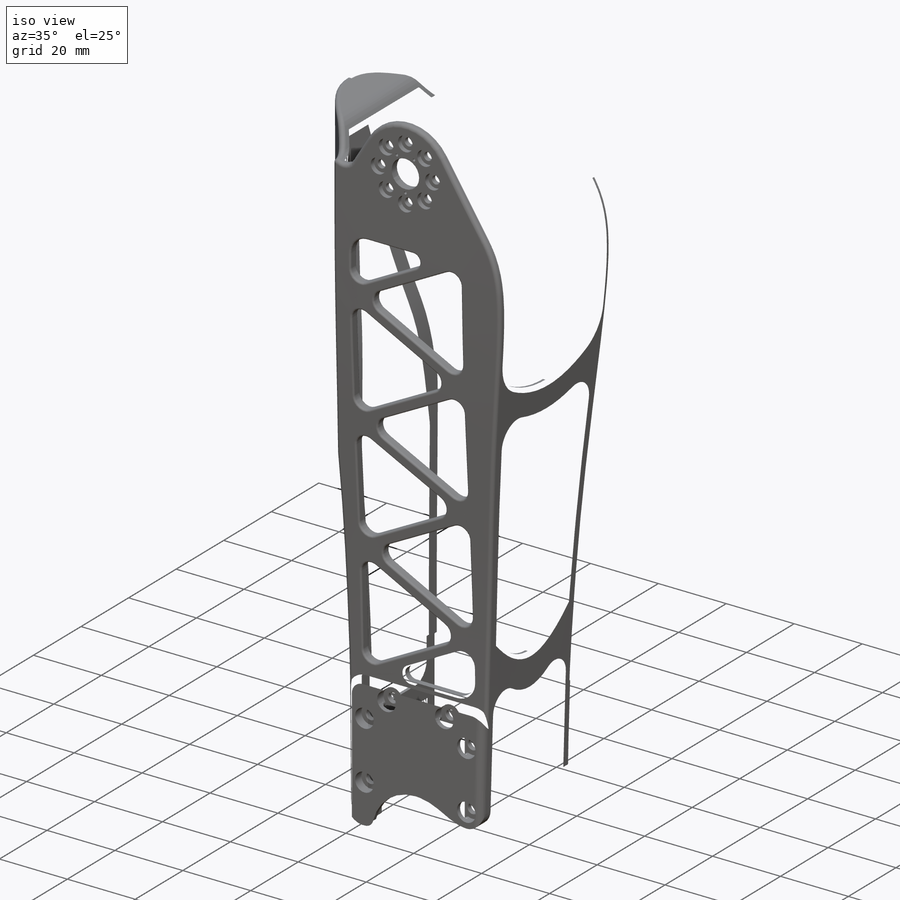
[diagram: iso view]
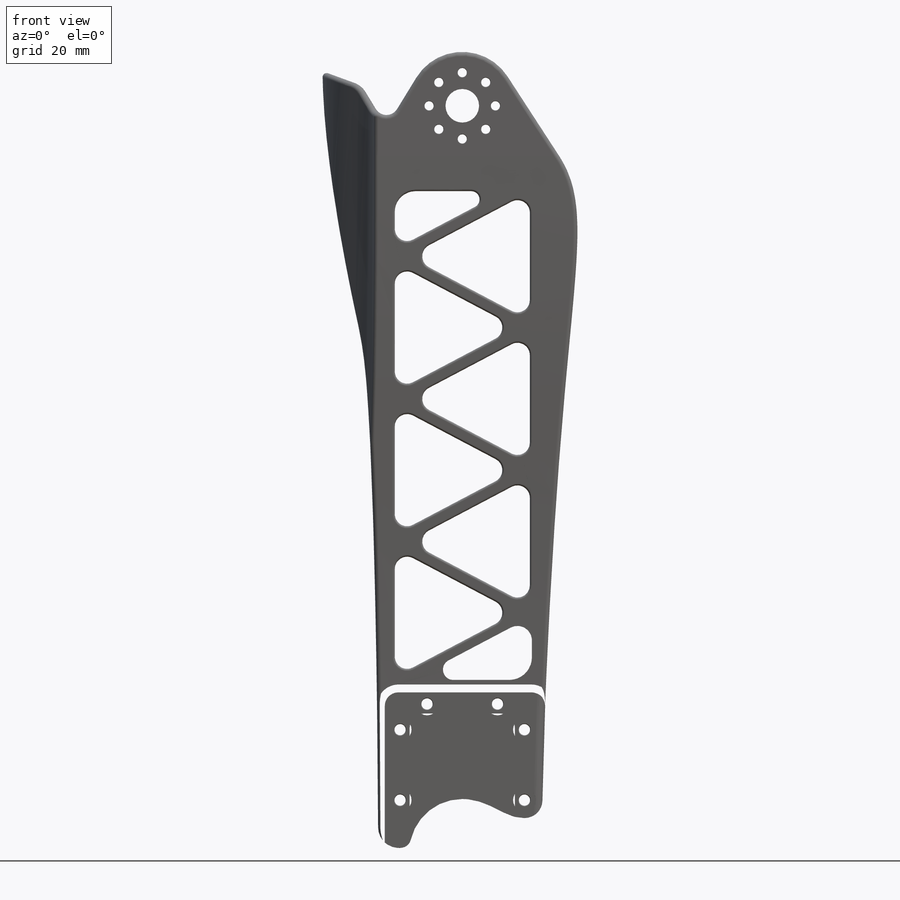
[diagram: front view]
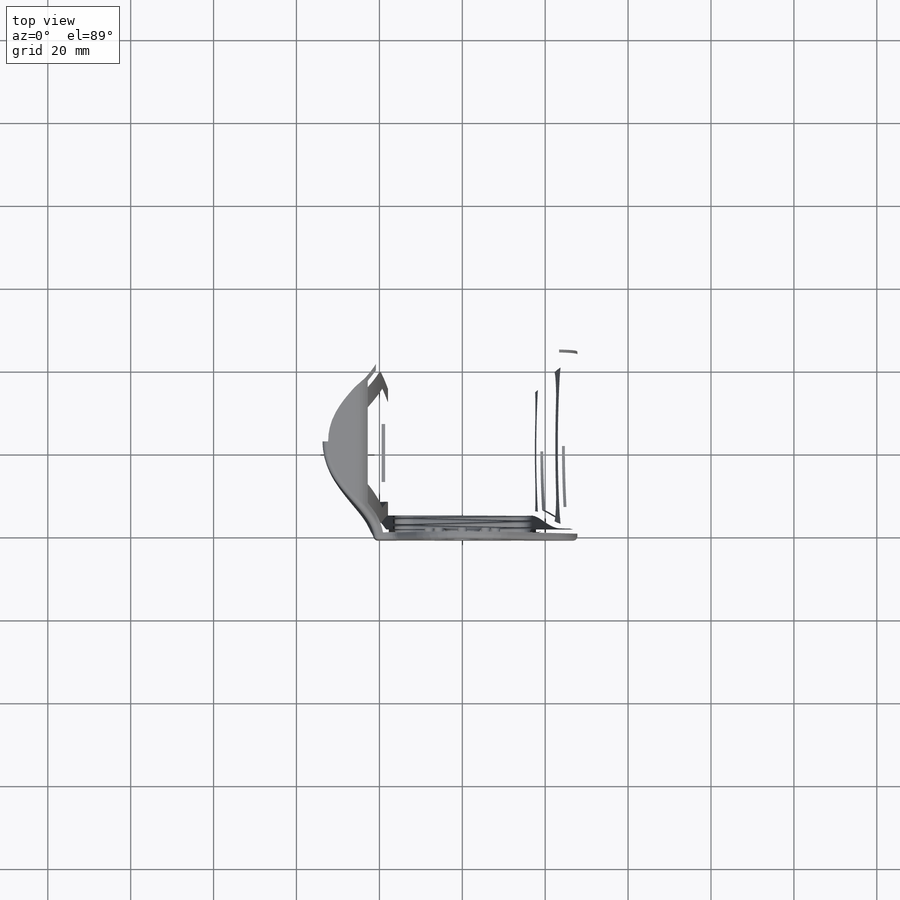
[diagram: top view]
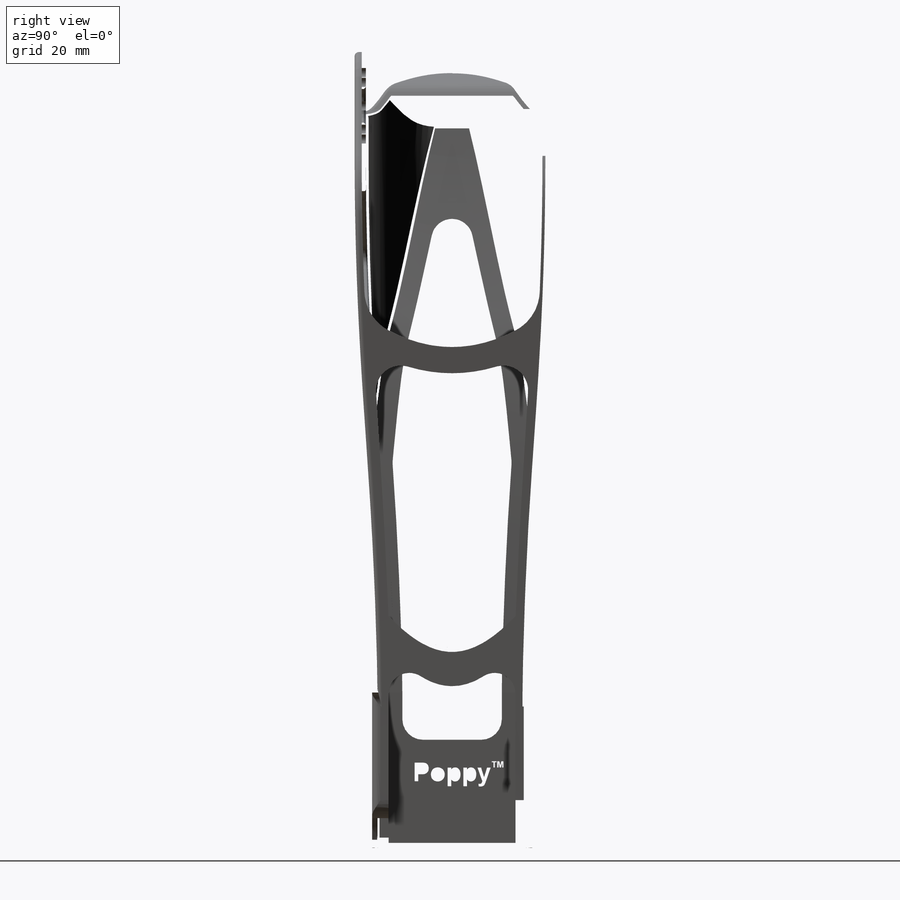
[diagram: right view]
SOLIDWORKS PART (.sldprt)
format: sldprt  version: not decoded by parser v0  size: 9,352,192 bytes
history: native  units: mm
features: sketch x30, fillet x24, cut_extrude x14, plane x6, extrude x4, hole x3, chamfer x2, material x1, shell x1, mirror x1 (+13 scaffold rows collapsed; 4 parser-record rows omitted)
feature tree (103):
  scaffold x13  (default folders/planes/origin — collapsed)
  material  "Material <not specified>"
  plane  "Plan de face"
  plane  "Plan de dessus"
  plane  "Plan de droite"
  plane  "leg_mirror_plane"
  sketch  "schema_motor_profil"  dims[D1=22.0mm D2=22.0mm D3=50.6mm D4=36.6mm D5=180.0mm D6=12.1mm D7=12.1mm]
  sketch  "schema_motor_face"  dims[D1=41.0mm D2=30.0mm D3=3.0mm D4=3.0mm D5=3.0mm D6=3.0mm]
  sketch  "schema_motor_bottom"  dims[D3=35.5mm D1=3.0mm D2=3.0mm]
  sketch  "anchor_position"  dims[c1.D3=8.0mm c1.D1=23.0mm c1.D2=12.2mm c1.D4=23.0mm c1.D5=9.7mm c2.D1=23.0mm c2.D2=12.2mm]
  sketch  "holes_knee_motor"  dims[c1.D1=16.0mm c1.D2=1.5mm c1.D4=~5.691933mm c2.D4=0.0deg c2.D5=~2.870126mm c3.D5=22.5deg c3.D3=8.0]
  sketch  "holes_ankle_motor"  dims[c1.D6=2.0mm c1.D1=17.0mm c1.D2=17.0mm c1.D3=30.0mm c1.D4=4.0mm c1.D5=2.8mm c2.D6=6.8mm c2.D4=9.0mm]
  plane  "knee_plane"
  parser-record x4  (decoder bookkeeping rows leaked as tree rows — omitted from the tree; the rows remain in map.json)
  sketch  "leg_profil_shape"  dims[c1.D3=~13.063992mm c1.D14=22.0mm c1.D2=35.6mm c2.D2=57.0deg c2.D3=2.0mm c2.D4=~12.43196mm c3.D4=20.0deg c3.D5=6.0mm c3.D6=10.0mm c3.D7=41.6mm c4.D7=10.0deg c4.D8=17.0mm c4.D1=2.0mm c4.D9=1.0mm c4.D10=70.0mm c4.D11=50.0mm c5.D10=2.0mm c5.D11=127.4mm c5.D12=54.0mm c5.D13=45.0mm c5.D14=5.0mm c5.D1=3.0mm]
  extrude  "profil shape"  [1 undecoded]
  sketch  "profil_shape_for_reference"  dims[D1=0.0mm]
  extrude  "reference"  Depth=10mm
  sketch  "lef_face_shape"  dims[c1.D3=115.0mm c1.D4=15.0mm c1.D1=3.0mm c1.D2=81.0mm c2.D3=90.0deg]
  cut_extrude  "face shape"  [1 undecoded]
  sketch  "leg_top_shape"  dims[D1=0.01mm D2=5.0mm]
  cut_extrude  "Enlèv. mat.-Extru.8"  [1 undecoded]
  fillet  "Congé8"  Radius=3mm
  fillet  "Congé13"  Radius=5mm
  shell  "Coque1"  Thickness=2.7mm
  sketch  "ankle_motor"  dims[D3=3.0mm D1=24.4mm D2=5.6mm D4=0.5mm]
  cut_extrude  "ankle motor shape"  [1 undecoded]
  sketch  "Esquisse29"  dims[D2=3.0mm D1=6.0mm]
  extrude  "Boss.-Extru.3"  Depth=1.3mm
  sketch  "Esquisse20"
  extrude  "Boss.-Extru.2"  [1 undecoded]
  sketch  "Sketch6"  dims[D1=1.0mm]
  cut_extrude  "Cut-Extrude4"  [1 undecoded]
  sketch  "Sketch5"  dims[c1.D1=~30.100839mm c1.D2=18.3mm c2.D1=~32.422541mm c2.D2=~19.348227mm c3.D1=0.3mm]
  cut_extrude  "Cut-Extrude3"  [1 undecoded]
  hole  "knee_M2_bolt_holes"  Diameter=2.2mm Depth=4mm
  sketch  "Esquisse12"
  sketch  "Esquisse11"  dims[hole-wizard template sketch: 27 standard entries collapsed; hole parameters kept: c8.Profondeur du perçage=4.0mm c8.Diamètre du chambrage=4.4mm c8.Profondeur du chambrage=1.4mm c8.Diamètre du fraisage milieu=2.4mm c8.D6=~5.388154mm c8.Angle du fraisage milieu=90.0deg c8.D7=~14.816244mm c8.Angle de pointe=118.0deg]
  hole  "knee_M2.5_bolt_holes"  Diameter=2.7mm Depth=58.768799mm
  sketch  "Sketch9"
  sketch  "Sketch8"  dims[hole-wizard template sketch: 42 standard entries collapsed; hole parameters kept: c12.Thru Hole Depth=~58.768799mm c12.C'Bore Dia.=5.5mm c12.C'Bore Depth=0.8mm c12.Mid C'Sink Dia.=2.75mm c12.D6=~5.388154mm c12.Mid C'Sink Angle=90.0deg]
  sketch  "Esquisse9"  dims[D1=8.1mm]
  cut_extrude  "knee_horn_hole"  [1 undecoded]
  chamfer  "Chanfrein7"  Distance=0.5mm Angle=45deg
  hole  "ankle_M2.5_holes"  Diameter=2.7mm Depth=14mm
  sketch  "Esquisse18"
  sketch  "Esquisse17"  dims[hole-wizard template sketch: 27 standard entries collapsed; hole parameters kept: c8.Profondeur du perçage=14.0mm c8.Diamètre du chambrage=5.5mm c8.Profondeur du chambrage=2.65mm c8.Diamètre du fraisage milieu=3.0mm c8.D6=~5.388154mm c8.Angle du fraisage milieu=90.0deg c8.D7=~14.816244mm c8.Angle de pointe=118.0deg]
  sketch  "Sketch1"  dims[c1.D2=0.75mm c1.D3=8.1mm c1.D1=~3.558257mm c2.D1=60.0deg c2.D3=1.0mm]
  cut_extrude  "mounting_marks"  Depth=1mm
  sketch  "rotation_indication"  dims[c1.D1=3.0mm c1.D2=3.0mm c1.D3=1.0mm c1.D4=10.0mm c2.D3=1.0mm]
  cut_extrude  "rotation_indication_marks"  Depth=1mm
  sketch  "Esquisse13"  dims[D1=2.0mm D2=2.0mm D3=2.0mm D4=7.0mm D7=~13.668472mm D5=1.5mm D6=1.5mm]
  cut_extrude  "Enlèv. mat.-Extru.10"  [1 undecoded]
  sketch  "Esquisse25"  dims[c1.D2=~11.446525mm c1.D3=~53.304388mm c1.D1=5.0mm c2.D2=5.0mm c2.D3=6.0mm c2.D4=8.0mm c2.D5=5.0mm c2.D1=6.0mm]
  cut_extrude  "Enlèv. mat.-Extru.12"  [1 undecoded]
  sketch  "Sketch2"  dims[c1.D2=0.05mm c1.D3=~53.304388mm c1.D1=5.0mm c2.D2=5.0mm c2.D3=6.0mm c2.D4=8.0mm c2.D5=5.0mm c2.D1=6.0mm]
  sketch  "Esquisse26"  dims[D1=38.0mm D2=45.0mm D3=10.0mm D4=50.0mm]
  cut_extrude  "Enlèv. mat.-Extru.13"  [1 undecoded]
  cut_extrude  "Cut-Extrude1"  [1 undecoded]
  plane  "Plan1"  Offset=32mm
  sketch  "Esquisse28"  dims[D1=4.0mm D2=7.0mm]
  cut_extrude  "Enlèv. mat.-Extru.14"  Depth=40mm
  fillet  "Fillet4"  Radius=5mm
  fillet  "Fillet3"  Radius=1mm
  fillet  "Congé11"  Radius=1mm
  fillet  "Congé9"  Radius=3mm
  fillet  "Congé14"  Radius=1mm
  fillet  "Congé12"  Radius=0.5mm
  fillet  "Congé27"  Radius=0.5mm
  fillet  "Congé16"  Radius=8mm
  fillet  "Fillet7"  Radius=5mm
  fillet  "Congé17"  Radius=5mm
  fillet  "Congé18"  Radius=1mm
  chamfer  "Chanfrein1"  Distance=5mm Angle=45deg
  fillet  "Congé21"  Radius=11mm
  fillet  "Congé22"  Radius=0.5mm
  fillet  "Fillet5"  Radius=0.5mm
  fillet  "Congé23"  Radius=1mm
  fillet  "Congé46"  Radius=2mm
  fillet  "Congé47"  Radius=1mm
  fillet  "Fillet12"  Radius=2mm
  fillet  "Fillet11"  Radius=2.5mm
  mirror  "Mirror"
  fillet  "Congé15"  Radius=5mm
  fillet  "Fillet6"  Radius=5mm
  fillet  "Congé19"  Radius=1mm
  sketch  "Sketch7"  dims[D1=19.0mm D2=10.0mm]
  cut_extrude  "Poppy_trademark"  Depth=1mm
decode coverage: 62 of 79 modeling features carry decoded parameters
note: ~ marks probable driven/reference dimensions
note: 12 parameter values undecoded
summary: no parameter record found for 12 features
note: suppression state not decoded; provenance and decode notes live in map.json
